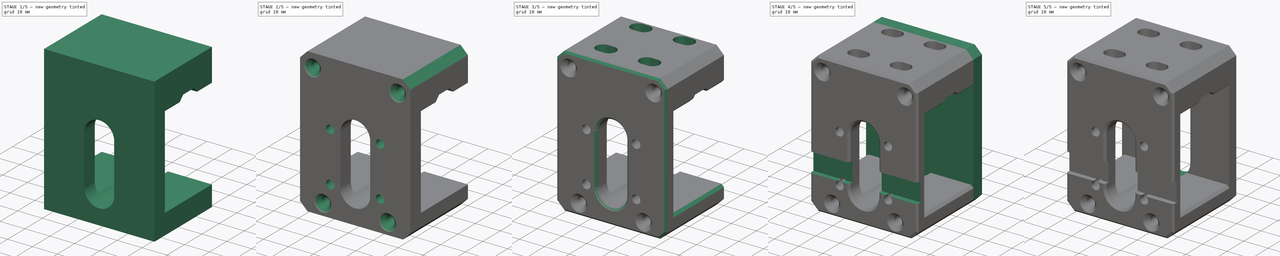
[diagram: build sequence overview — one tinted view per stage of 5, left to right]
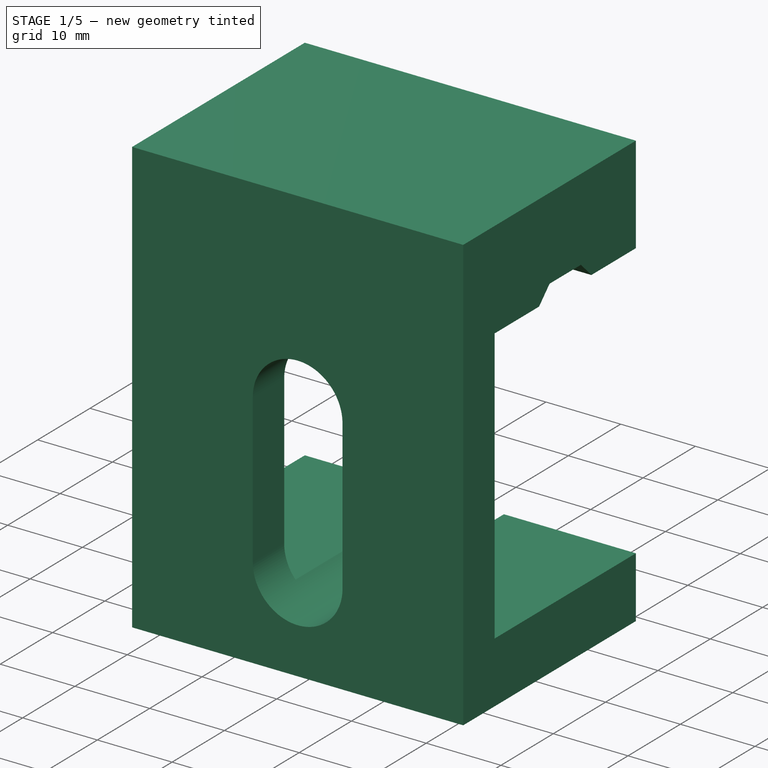
[diagram: stage 1 of 5 — iso view after this stage's code; geometry added in this stage tinted green]
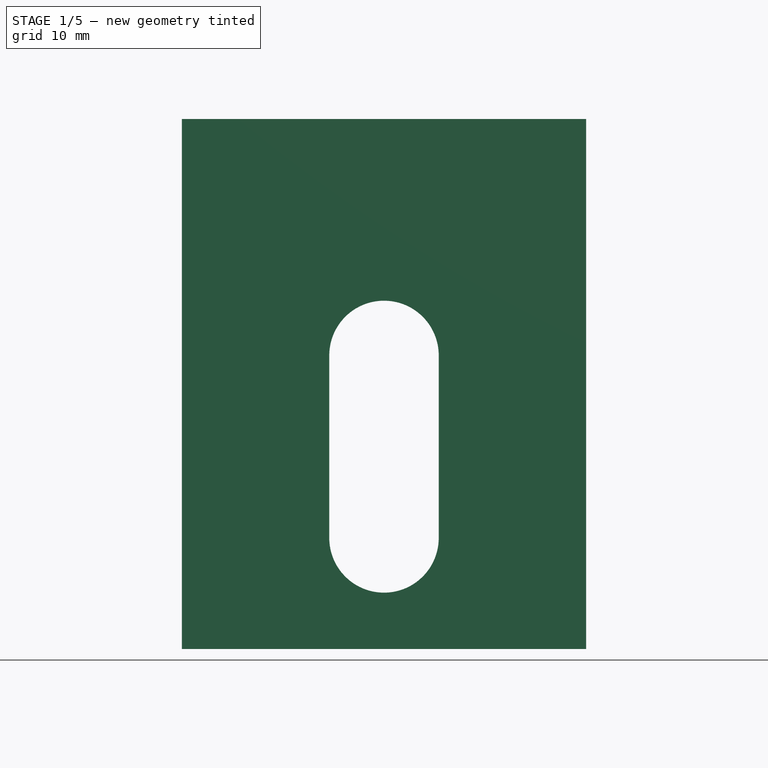
[diagram: stage 1 of 5 — front view after this stage's code; geometry added in this stage tinted green]
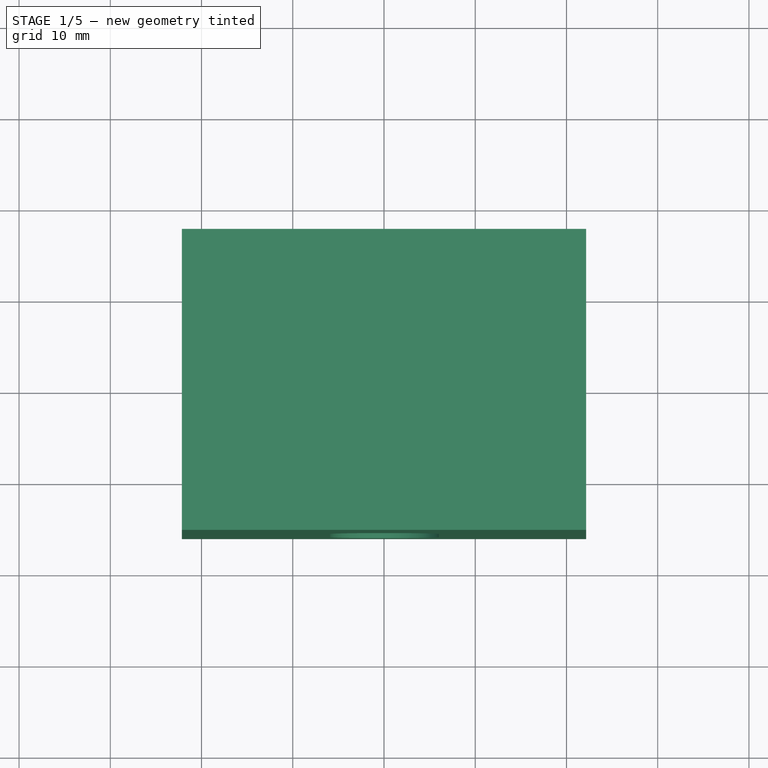
[diagram: stage 1 of 5 — top view after this stage's code; geometry added in this stage tinted green]
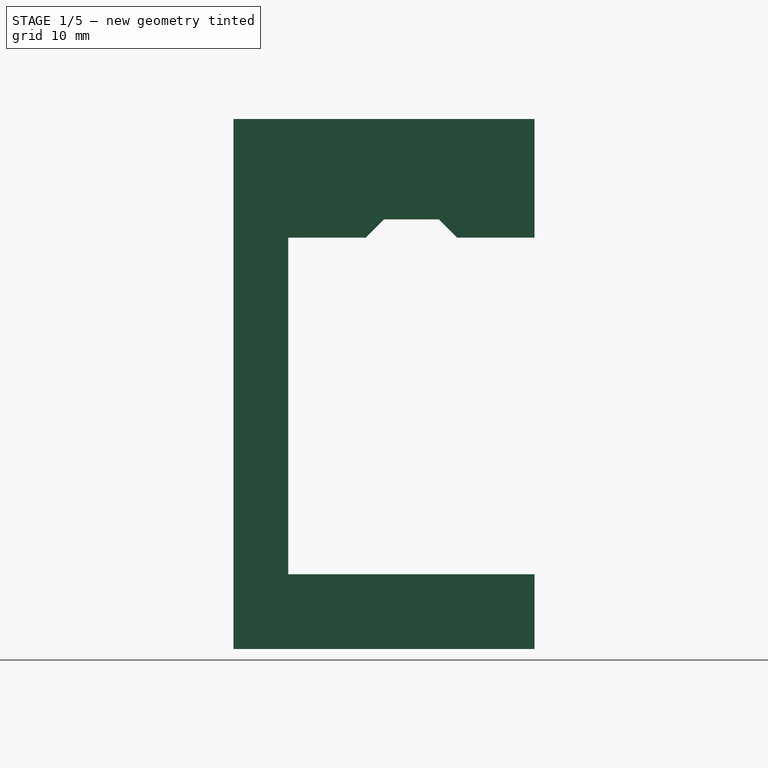
[diagram: stage 1 of 5 — right view after this stage's code; geometry added in this stage tinted green]
FCSTD DOCUMENT  (FreeCAD 2022.709R28846 (Git))
Label: HermitCrab_EVA
License: All rights reserved
objects: PartDesign::Chamfer×8, PartDesign::SubShapeBinder×6, Sketcher::SketchObject×5, PartDesign::Pad×4, PartDesign::Pocket×4, Sketcher::SketchExport×4, PartDesign::Hole×3, PartDesign::Body×3, PartDesign::Plane×2, PartDesign::FeatureBase×1, PartDesign::SubtractiveBox×1
note: 82 computed .brp shape members not serialized (recipe doc carries the construction recipe); baked Part::Feature solids carry a one-line shape summary decoded from their .brp

FEATURE [PartDesign::Body] Body001  label="BackPlate"
  AutoGroupSolids = false
  ClaimAllChildren = false
  ExportMode = 0
  Group = -> [DatumPlane001,Sketch005,Pad003,Chamfer005,Binder005,Pocket003,Binder004,Chamfer006,Hole002,Chamfer007]
  Origin = -> Origin001
  Tip = -> Chamfer007
  TreeRank = 55
  _ExportChildren = -> [DatumPlane001,Pad003,Chamfer005,Pocket003,Chamfer006,Hole002,Chamfer007]
  _GroupVersion = 1
FEATURE [PartDesign::Body] Body
  AutoGroupSolids = false
  ClaimAllChildren = false
  ExportMode = 0
  Group = -> [Sketch,Pad,Export,Export001,Binder001,Sketch002,Pad001,Sketch003,Pad002,Export002,Binder002,Pocket,Hole,Chamfer,Binder,Hole001,Chamfer001,Chamfer002,Chamfer003,Chamfer004,DatumPlane,Sketch004,Export003,Pocket001,Binder003,Pocket002]
  Origin = -> Origin
  Tip = -> Pocket002
  TreeRank = 10
  _ExportChildren = -> [Pad,Pad001,Pad002,Pocket,Hole,Chamfer,Hole001,Chamfer001,Chamfer002,Chamfer003,Chamfer004,DatumPlane,Pocket001,Pocket002]
  _GroupVersion = 1
FEATURE [Sketcher::SketchObject] Sketch  label="S_BasePlate"
  ArcFitTolerance = 1e-06
  AttachmentSupport = -> [XZ_Plane]
  Exports = -> [Export,Export001,Export002]
  FullyConstrained = true
  MapMode = 5
  Placement = pos=(0,0,0) rot=(1,0,0;1.5708rad)
  Support = -> [XZ_Plane]
  TreeRank = 11
  sketch-geometry (27):
    g0: Circle [constr] CenterX=-17.05 CenterY=30.42 CenterZ=0 NormalX=0 NormalY=0 NormalZ=1 AngleXU=0 Radius=1.5
    g1: Circle [constr] CenterX=17.05 CenterY=30.42 CenterZ=0 NormalX=0 NormalY=0 NormalZ=1 AngleXU=0 Radius=1.5
    g2: Circle [constr] CenterX=-13 CenterY=-17.58 CenterZ=0 NormalX=0 NormalY=0 NormalZ=1 AngleXU=0 Radius=1.5
    g3: Circle [constr] CenterX=13 CenterY=-17.58 CenterZ=0 NormalX=0 NormalY=0 NormalZ=1 AngleXU=0 Radius=1.5
    g4: LineSegment [constr] StartX=-17.05 StartY=30.42 StartZ=0 EndX=13 EndY=-17.58 EndZ=0
    g5: LineSegment [constr] StartX=-13 StartY=-17.58 StartZ=0 EndX=17.05 EndY=30.42 EndZ=0
    g6: GeomPoint [constr] X=0 Y=0 Z=0
    g7: LineSegment StartX=-22.15 StartY=35.92 StartZ=0 EndX=22.15 EndY=35.92 EndZ=0
    g8: LineSegment StartX=22.15 StartY=35.92 StartZ=0 EndX=22.15 EndY=-22.18 EndZ=0
    g9: LineSegment StartX=22.15 StartY=-22.18 StartZ=0 EndX=-22.15 EndY=-22.18 EndZ=0
    g10: LineSegment StartX=-22.15 StartY=-22.18 StartZ=0 EndX=-22.15 EndY=35.92 EndZ=0
    g11: LineSegment [constr] StartX=-17.05 StartY=30.42 StartZ=0 EndX=-17.05 EndY=35.92 EndZ=0
    g12: LineSegment [constr] StartX=-17.05 StartY=30.42 StartZ=0 EndX=-22.15 EndY=30.42 EndZ=0
    g13: LineSegment [constr] StartX=-13 StartY=-17.58 StartZ=0 EndX=-13 EndY=-22.18 EndZ=0
    g14: LineSegment [constr] StartX=-10 StartY=10 StartZ=0 EndX=10 EndY=10 EndZ=0
    g15: LineSegment [constr] StartX=10 StartY=10 StartZ=0 EndX=10 EndY=-10 EndZ=0
    g16: LineSegment [constr] StartX=-10 StartY=-10 StartZ=0 EndX=-10 EndY=10 EndZ=0
    g17: GeomPoint [constr] X=10 Y=8e-16 Z=0
    g18: Circle [constr] CenterX=-10 CenterY=10 CenterZ=0 NormalX=0 NormalY=0 NormalZ=1 AngleXU=0 Radius=4
    g19: Circle [constr] CenterX=-10 CenterY=-10 CenterZ=0 NormalX=0 NormalY=0 NormalZ=1 AngleXU=0 Radius=4
    g20: Circle [constr] CenterX=10 CenterY=-10 CenterZ=0 NormalX=0 NormalY=0 NormalZ=1 AngleXU=0 Radius=4
    g21: Circle [constr] CenterX=10 CenterY=10 CenterZ=0 NormalX=0 NormalY=0 NormalZ=1 AngleXU=0 Radius=4
    g22: ArcOfCircle CenterX=0 CenterY=9.99998 CenterZ=0 NormalX=0 NormalY=0 NormalZ=1 AngleXU=0 Radius=6 StartAngle=0 EndAngle=3.14159
    g23: ArcOfCircle CenterX=1e-16 CenterY=-10 CenterZ=0 NormalX=0 NormalY=0 NormalZ=1 AngleXU=0 Radius=6 StartAngle=3.14159 EndAngle=6.28319
    g24: LineSegment StartX=-6 StartY=9.99998 StartZ=0 EndX=-6 EndY=-10 EndZ=0
    g25: LineSegment StartX=6 StartY=9.99998 StartZ=0 EndX=6 EndY=-10 EndZ=0
    g26: LineSegment [constr] StartX=17.05 StartY=30.42 StartZ=0 EndX=22.15 EndY=30.42 EndZ=0
  constraints (70):
    c: Horizontal(g0,g1)
    c: DistanceX(g0,g1) = 34.1
    c: DistanceY(g2,g0) = 48
    c: DistanceX(g2,g3) = 26
    c: Equal(g0,g1)
    c: Equal(g1,g2)
    c: Equal(g2,g3)
    c: Diameter(g0) = 3
    c: Coincident(g4,g0)
    c: Coincident(g4,g3)
    c: Coincident(g5,g2)
    c: Coincident(g5,g1)
    c: Equal(g5,g4)
    c: Coincident(g6,g-1)
    c: Coincident(g7,g8)
    c: Coincident(g8,g9)
    c: Coincident(g9,g10)
    c: Coincident(g10,g7)
    c: Horizontal(g7)
    c: Horizontal(g9)
    c: Vertical(g8)
    c: Vertical(g10)
    c: Coincident(g11,g0)
    c: PointOnObject(g11,g7)
    c: Vertical(g11)
    c: DistanceY(g11,g11) = 5.5
    c: Coincident(g12,g0)
    c: PointOnObject(g12,g10)
    c: Horizontal(g12)
    c: Coincident(g13,g2)
    c: PointOnObject(g13,g9)
    c: Vertical(g13)
    c: DistanceY(g13,g13) = 4.6
    c: DistanceX(g7,g7) = 44.3  'Width'
    c: Coincident(g14,g15)
    c: Coincident(g16,g14)
    c: Horizontal(g14)
    c: Vertical(g15)
    c: DistanceX(g14,g14) = 20
    c: DistanceY(g15,g15) = 20
    c: PointOnObject(g17,g15)
    c: DistanceY(g17,g14) = 10
    c: DistanceY(g8,g17) = 22.18  'DistBottom'
    c: Coincident(g18,g14)
    c: Coincident(g20,g15)
    c: Coincident(g21,g14)
    c: Diameter(g18) = 8
    c: Equal(g18,g21)
    c: Equal(g18,g20)
    c: Equal(g18,g19)
    c: Symmetric(g16,g15,g-2)
    c: Coincident(g19,g16)
    c: Tangent(g22,g25) = 1.5708
    c: Tangent(g22,g24) = -1.5708
    c: Tangent(g24,g23) = -1.5708
    c: Tangent(g25,g23) = 1.5708
    c: Vertical(g24)
    c: Equal(g22,g23)
    c: PointOnObject(g22,g-2)
    c: Tangent(g25,g20)
    c: PointOnObject(g23,g20)
    c: PointOnObject(g22,g21)
    c: Symmetric(g2,g3,g-2)
    c: Coincident(g26,g1)
    c: PointOnObject(g26,g8)
    c: Horizontal(g26)
    c: Equal(g26,g12)
    c: DistanceX(g26,g26) = 5.1
    c: Symmetric(g16,g14,g-1)
    c: DistanceY(g17,g7) = 35.92  'DistTop'
FEATURE [PartDesign::Pad] Pad  label="FrontPlate"
  ClaimChildren = false
  Direction = (1,1,1)
  Fit = 0
  FitJoin = 0
  InnerFit = 0
  InnerFitJoin = 0
  InnerTaperAngle = 0
  InnerTaperAngleRev = 0
  Length = 6
  Length2 = 100
  Linearize = true
  NewSolid = false
  Placement = pos=(0,0,0) rot=(1,0,0;1.5708rad)
  Profile = -> Sketch
  Suppress = false
  TreeRank = 12
  Type = 0
  _ProfileBasedVersion = 1
FEATURE [Sketcher::SketchExport] Export  label="EvaHoles"
  Base = -> Sketch
  BaseRefs = -> Sketch [edge3,edge4,edge2,edge1]
  Placement = pos=(0,0,0) rot=(1,0,0;1.5708rad)
  Refs = ;g3.edge3 | ;g4.edge4 | ;g2.edge2 | ;g1.edge1
  SyncPlacement = true
  TreeRank = 15
FEATURE [Sketcher::SketchExport] Export001  label="HCHoles"
  Base = -> Sketch
  BaseRefs = -> Sketch [edge20,edge21,edge22,edge19]
  Placement = pos=(0,0,0) rot=(1,0,0;1.5708rad)
  Refs = ;g21.edge20 | ;g22.edge21 | ;g23.edge22 | ;g20.edge19
  SyncPlacement = true
  TreeRank = 20
FEATURE [PartDesign::Pad] Pad001  label="TopPlate"
  BaseFeature = -> Pad
  ClaimChildren = false
  Direction = (1,1,1)
  Fit = 0
  FitJoin = 0
  InnerFit = 0
  InnerFitJoin = 0
  InnerTaperAngle = 0
  InnerTaperAngleRev = 0
  Length = 44.3
  Length2 = 100
  Linearize = true
  Midplane = true
  NewSolid = false
  Placement = pos=(0,0,0) rot=(1,0,0;1.5708rad)
  Profile = -> Sketch002
  Suppress = false
  TreeRank = 25
  Type = 0
  _ProfileBasedVersion = 1
  expr: Length = <<S_BasePlate>>.Constraints.Width
FEATURE [PartDesign::Pad] Pad002  label="BottomPlate"
  BaseFeature = -> Pad001
  ClaimChildren = false
  Direction = (1,1,1)
  Fit = 0
  FitJoin = 0
  InnerFit = 0
  InnerFitJoin = 0
  InnerTaperAngle = 0
  InnerTaperAngleRev = 0
  Length = 44.3
  Length2 = 100
  Linearize = true
  Midplane = true
  NewSolid = false
  Placement = pos=(0,0,0) rot=(1,0,0;1.5708rad)
  Profile = -> Sketch003
  Suppress = false
  TreeRank = 27
  Type = 0
  _ProfileBasedVersion = 1
  expr: Length = <<S_BasePlate>>.Constraints.Width
FEATURE [Sketcher::SketchExport] Export002  label="CenterRelief001"
  Base = -> Sketch
  BaseRefs = -> Sketch [edge24,edge25,edge26,edge23]
  Placement = pos=(0,0,0) rot=(1,0,0;1.5708rad)
  Refs = ;g25.edge24 | ;g26.edge25 | ;g27.edge26 | ;g24.edge23
  SyncPlacement = true
  TreeRank = 28
FEATURE [PartDesign::Pocket] Pocket  label="CenterRelief"
  BaseFeature = -> Pad002
  ClaimChildren = false
  Fit = 0
  FitJoin = 0
  InnerFit = 0
  InnerFitJoin = 0
  InnerTaperAngle = 0
  InnerTaperAngleRev = 0
  Length = 5
  Length2 = 100
  Linearize = true
  Midplane = true
  NewSolid = false
  Placement = pos=(0,0,0) rot=(1,0,0;1.5708rad)
  Profile = -> Binder002
  Reversed = true
  Suppress = false
  TreeRank = 30
  Type = 1
  _ProfileBasedVersion = 1
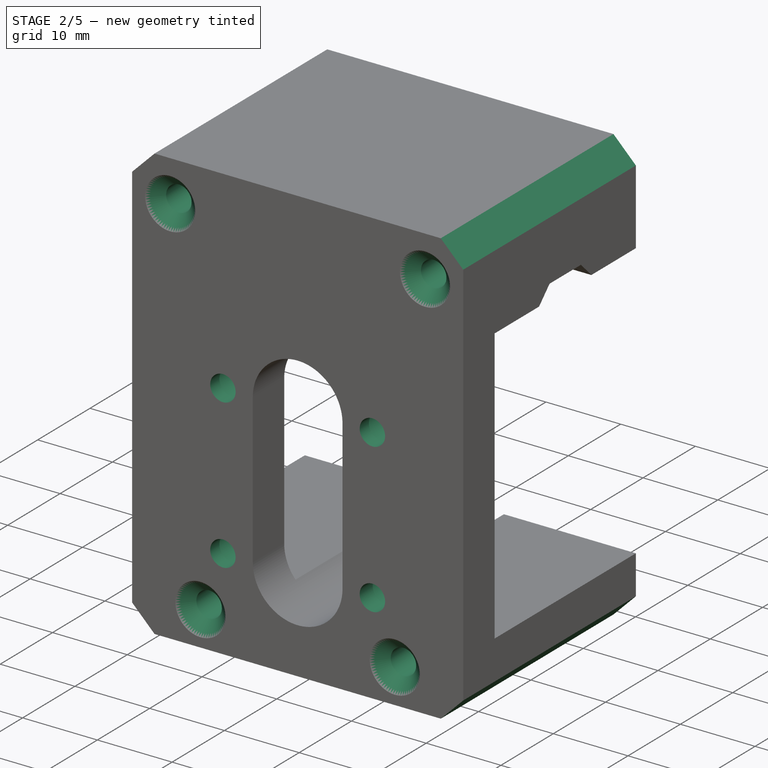
[diagram: stage 2 of 5 — iso view after this stage's code; geometry added in this stage tinted green]
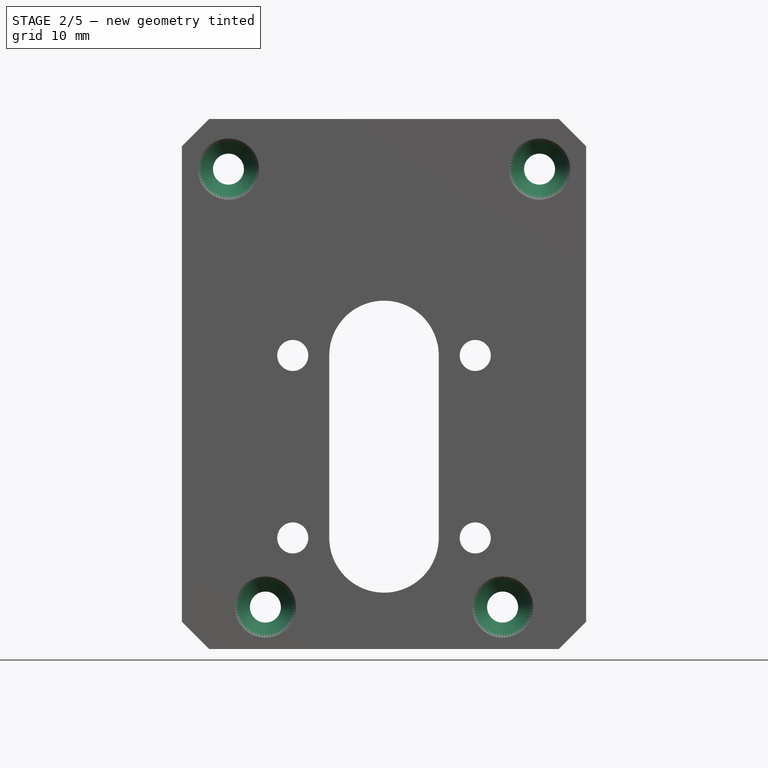
[diagram: stage 2 of 5 — front view after this stage's code; geometry added in this stage tinted green]
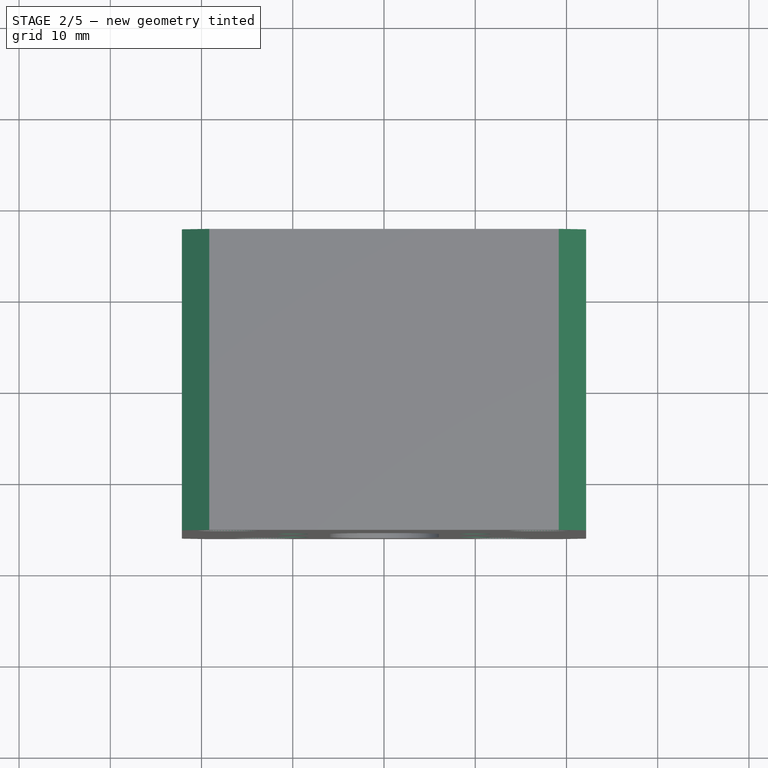
[diagram: stage 2 of 5 — top view after this stage's code; geometry added in this stage tinted green]
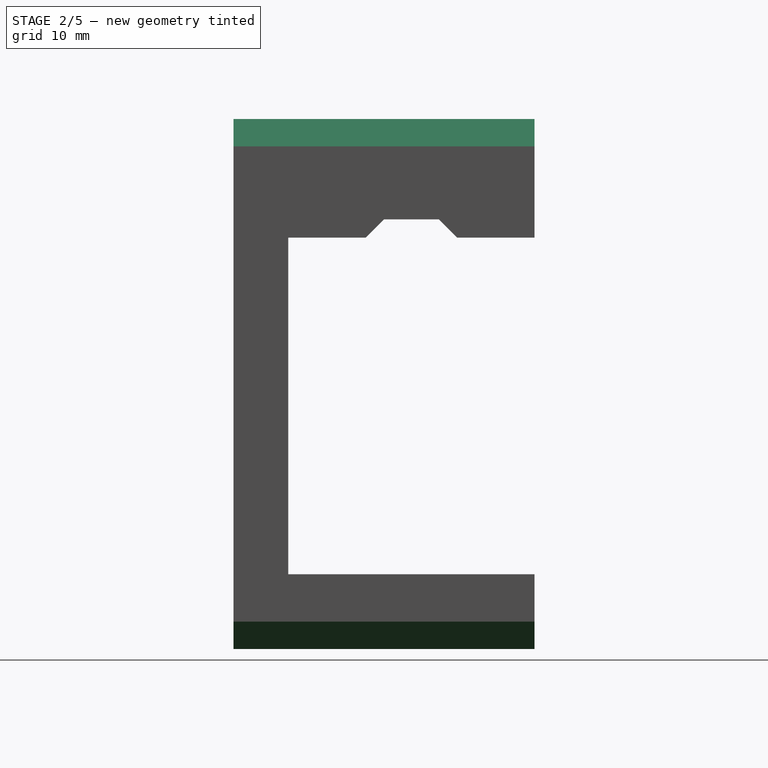
[diagram: stage 2 of 5 — right view after this stage's code; geometry added in this stage tinted green]
FEATURE [PartDesign::Hole] Hole  label="HC_Holes"
  BaseFeature = -> Pocket
  ClaimChildren = false
  CustomThreadClearance = 0
  Depth = 25
  DepthType = 1
  Diameter = 3.4
  DrillForDepth = false
  DrillPoint = 1
  DrillPointAngle = 118
  Fit = 0
  FitJoin = 0
  HoleCutCountersinkAngle = 93
  HoleCutCustomValues = true
  HoleCutDepth = 3.5
  HoleCutDiameter = 4.9
  HoleCutType = 1
  InnerFit = 0
  InnerFitJoin = 0
  ModelThread = false
  NewSolid = false
  Placement = pos=(0,0,0) rot=(1,0,0;1.5708rad)
  Profile = -> Binder001
  Suppress = false
  Tapered = false
  TaperedAngle = 99
  ThreadClass = 0
  ThreadDepth = 161.942
  ThreadDepthType = 0
  ThreadDirection = 0
  ThreadFit = 0
  ThreadSize = 9
  ThreadType = 1
  Threaded = false
  TreeRank = 31
  UseCustomThreadClearance = false
  _ProfileBasedVersion = 1
FEATURE [PartDesign::Chamfer] Chamfer  label="HC_Hole_Chamfer"
  Angle = 45
  Base = -> Hole [Edge62,Edge71,Edge69,Edge60]
  BaseFeature = -> Hole
  ChamferType = 0
  FlipDirection = false
  NewSolid = false
  Placement = pos=(0,0,0) rot=(1,0,0;1.5708rad)
  Size = 0.74
  Size2 = 1
  SupportTransform = false
  Suppress = false
  TreeRank = 32
FEATURE [PartDesign::Hole] Hole001  label="EVAFrontFastener"
  BaseFeature = -> Chamfer
  ClaimChildren = false
  CustomThreadClearance = 0
  Depth = 25
  DepthType = 1
  Diameter = 3.4
  DrillForDepth = false
  DrillPoint = 1
  DrillPointAngle = 118
  Fit = 0
  FitJoin = 0
  HoleCutCountersinkAngle = 90
  HoleCutCustomValues = false
  HoleCutDepth = 0
  HoleCutDiameter = 6.7
  HoleCutType = 7
  InnerFit = 0
  InnerFitJoin = 0
  ModelThread = false
  NewSolid = false
  Placement = pos=(0,0,0) rot=(1,0,0;1.5708rad)
  Profile = -> Binder
  Reversed = true
  Suppress = false
  Tapered = false
  TaperedAngle = 90
  ThreadClass = 0
  ThreadDepth = 161.942
  ThreadDepthType = 0
  ThreadDirection = 0
  ThreadFit = 0
  ThreadSize = 9
  ThreadType = 1
  Threaded = false
  TreeRank = 34
  UseCustomThreadClearance = false
  _ProfileBasedVersion = 1
FEATURE [PartDesign::Chamfer] Chamfer001  label="Chamfer_Corners"
  Angle = 45
  Base = -> Hole001 [Edge22,Edge61,Edge23,Edge62,Edge29,Edge84,Edge63,Edge25]
  BaseFeature = -> Hole001
  ChamferType = 0
  FlipDirection = false
  NewSolid = false
  Placement = pos=(0,0,0) rot=(1,0,0;1.5708rad)
  Size = 3
  Size2 = 1
  SupportTransform = false
  Suppress = false
  TreeRank = 35
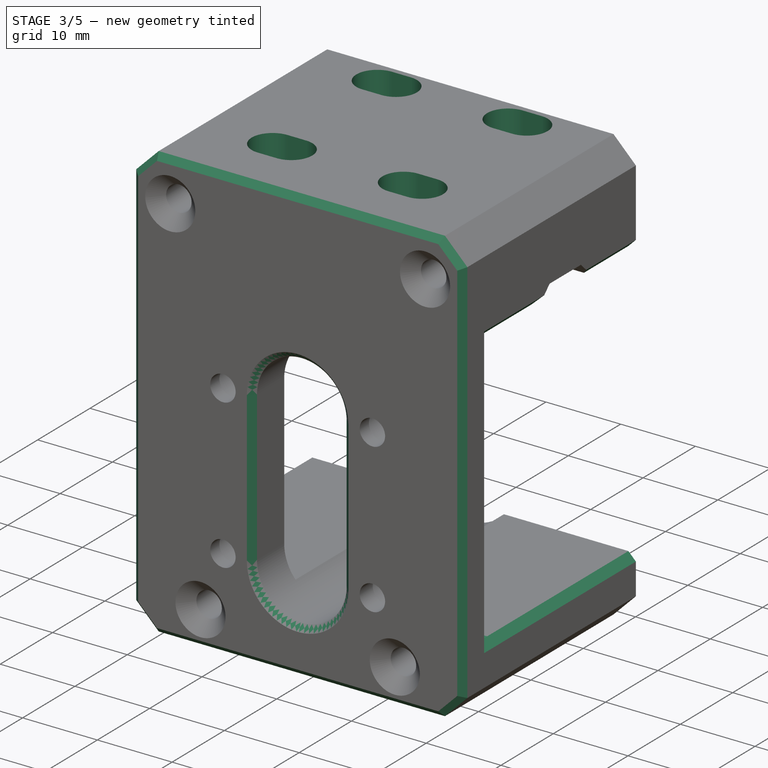
[diagram: stage 3 of 5 — iso view after this stage's code; geometry added in this stage tinted green]
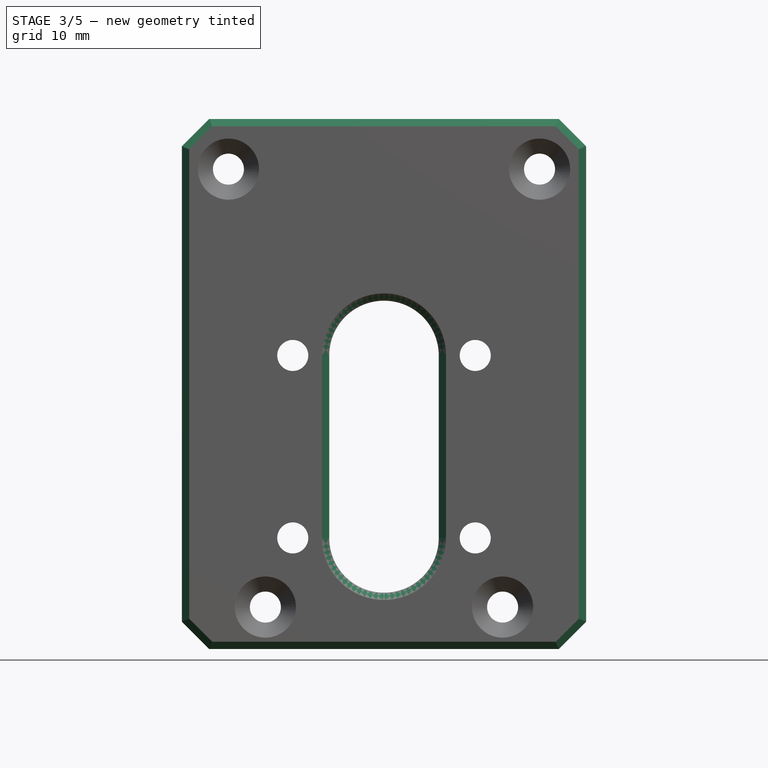
[diagram: stage 3 of 5 — front view after this stage's code; geometry added in this stage tinted green]
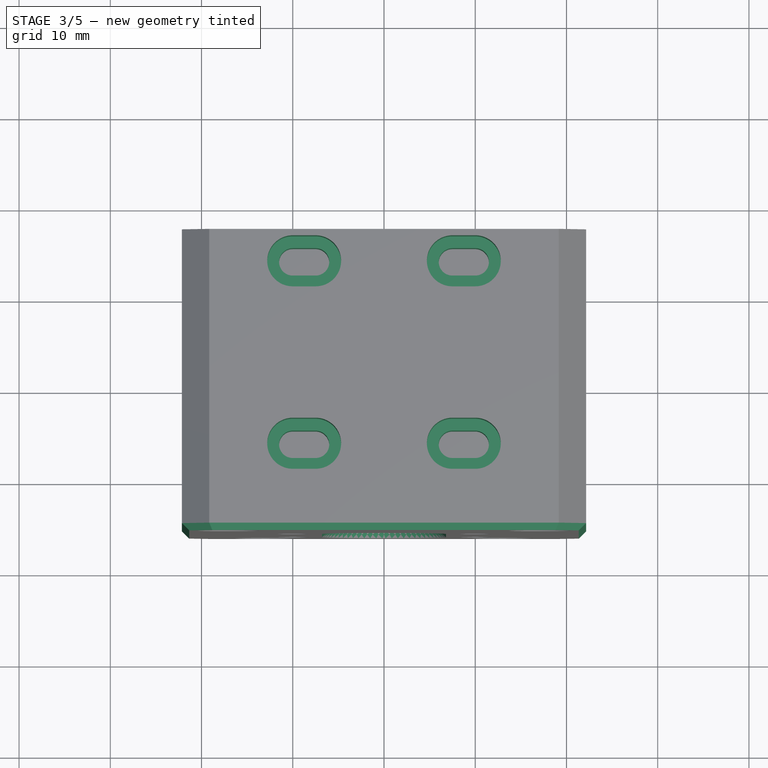
[diagram: stage 3 of 5 — top view after this stage's code; geometry added in this stage tinted green]
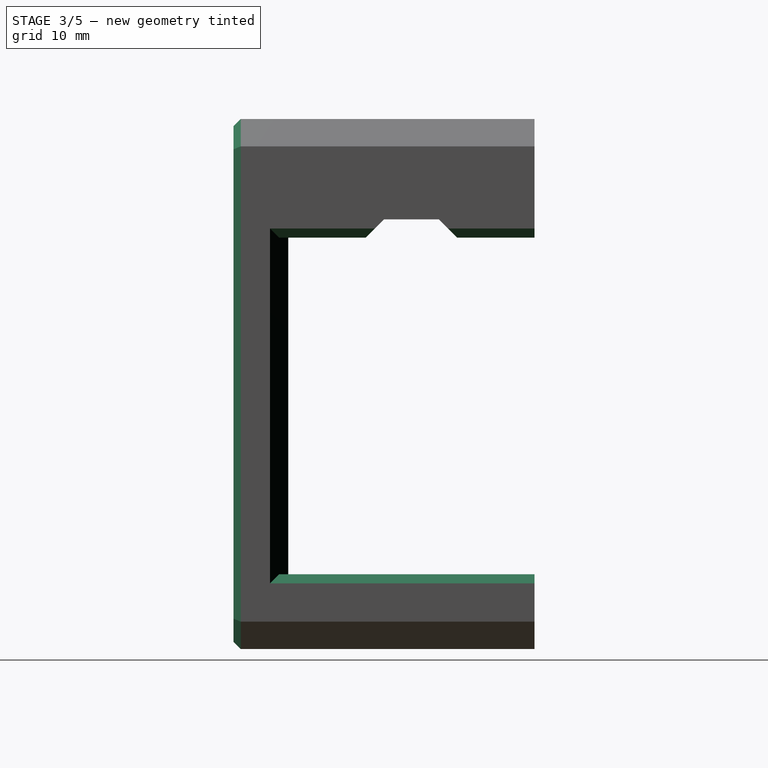
[diagram: stage 3 of 5 — right view after this stage's code; geometry added in this stage tinted green]
FEATURE [PartDesign::Chamfer] Chamfer002  label="Chamfer_FrontInner"
  Angle = 45
  Base = -> Chamfer001 [Edge30,Edge33]
  BaseFeature = -> Chamfer001
  ChamferType = 0
  FlipDirection = false
  NewSolid = false
  Placement = pos=(0,0,0) rot=(1,0,0;1.5708rad)
  Size = 2
  Size2 = 1
  SupportTransform = false
  Suppress = false
  TreeRank = 36
FEATURE [PartDesign::Chamfer] Chamfer003  label="Chamfer_Bottom"
  Angle = 45
  Base = -> Chamfer002 [Edge83,Edge124,Edge8,Edge11,Edge6,Edge50,Edge89,Edge24]
  BaseFeature = -> Chamfer002
  ChamferType = 0
  FlipDirection = false
  NewSolid = false
  Placement = pos=(0,0,0) rot=(1,0,0;1.5708rad)
  Size = 1
  Size2 = 1
  SupportTransform = false
  Suppress = false
  TreeRank = 37
FEATURE [PartDesign::Chamfer] Chamfer004  label="Chamfer_Front"
  Angle = 45
  Base = -> Chamfer003 [Edge5,Edge29,Edge24,Edge25,Edge26,Edge27,Edge28,Edge17,Edge34]
  BaseFeature = -> Chamfer003
  ChamferType = 0
  FlipDirection = false
  NewSolid = false
  Placement = pos=(0,0,0) rot=(1,0,0;1.5708rad)
  Size = 0.8
  Size2 = 1
  SupportTransform = false
  Suppress = false
  TreeRank = 38
FEATURE [Sketcher::SketchObject] Sketch004  label="MGN_Mount"
  ArcFitTolerance = 1e-06
  AttachmentSupport = -> [DatumPlane]
  Exports = -> [Export003]
  FullyConstrained = true
  MapMode = 5
  Placement = pos=(0,0,35.92) rot=(0,0,1;0rad)
  Support = -> [DatumPlane]
  TreeRank = 41
  expr: Constraints[3] = <<S_TopPlate>>.Constraints.Width
  expr: Constraints[88] = <<S_TopPlate>>.Constraints.Width / 2
  sketch-geometry (39):
    g0: LineSegment [constr] StartX=-10 StartY=3.5 StartZ=0 EndX=10 EndY=3.5 EndZ=0
    g1: LineSegment [constr] StartX=-10 StartY=23.5 StartZ=0 EndX=10 EndY=23.5 EndZ=0
    g2: LineSegment [constr] StartX=0 StartY=0 StartZ=0 EndX=0 EndY=27 EndZ=0
    g3: ArcOfCircle CenterX=-10 CenterY=23.5 CenterZ=0 NormalX=0 NormalY=0 NormalZ=1 AngleXU=0 Radius=1.5 StartAngle=1.5708 EndAngle=4.71239
    g4: ArcOfCircle CenterX=-7.5 CenterY=23.5 CenterZ=0 NormalX=0 NormalY=0 NormalZ=1 AngleXU=0 Radius=1.5 StartAngle=4.71239 EndAngle=7.85398
    g5: LineSegment StartX=-10 StartY=22 StartZ=0 EndX=-7.5 EndY=22 EndZ=0
    g6: LineSegment StartX=-10 StartY=25 StartZ=0 EndX=-7.5 EndY=25 EndZ=0
    g7: ArcOfCircle CenterX=10 CenterY=23.5 CenterZ=0 NormalX=0 NormalY=0 NormalZ=1 AngleXU=0 Radius=1.5 StartAngle=4.71239 EndAngle=7.85398
    g8: ArcOfCircle CenterX=7.5 CenterY=23.5 CenterZ=0 NormalX=0 NormalY=0 NormalZ=1 AngleXU=0 Radius=1.5 StartAngle=1.5708 EndAngle=4.71239
    g9: LineSegment StartX=10 StartY=25 StartZ=0 EndX=7.5 EndY=25 EndZ=0
    g10: LineSegment StartX=10 StartY=22 StartZ=0 EndX=7.5 EndY=22 EndZ=0
    g11: ArcOfCircle CenterX=-10 CenterY=3.5 CenterZ=0 NormalX=0 NormalY=0 NormalZ=1 AngleXU=0 Radius=1.5 StartAngle=1.5708 EndAngle=4.71239
    g12: ArcOfCircle CenterX=-7.5 CenterY=3.5 CenterZ=0 NormalX=0 NormalY=0 NormalZ=1 AngleXU=0 Radius=1.5 StartAngle=4.71239 EndAngle=7.85398
    g13: LineSegment StartX=-10 StartY=2 StartZ=0 EndX=-7.5 EndY=2 EndZ=0
    g14: LineSegment StartX=-10 StartY=5 StartZ=0 EndX=-7.5 EndY=5 EndZ=0
    g15: ArcOfCircle CenterX=10 CenterY=3.5 CenterZ=0 NormalX=0 NormalY=0 NormalZ=1 AngleXU=0 Radius=1.5 StartAngle=4.71239 EndAngle=7.85398
    g16: ArcOfCircle CenterX=7.5 CenterY=3.5 CenterZ=0 NormalX=0 NormalY=0 NormalZ=1 AngleXU=0 Radius=1.5 StartAngle=1.5708 EndAngle=4.71239
    g17: LineSegment StartX=10 StartY=5 StartZ=0 EndX=7.5 EndY=5 EndZ=0
    g18: LineSegment StartX=10 StartY=2 StartZ=0 EndX=7.5 EndY=2 EndZ=0
    g19: ArcOfCircle [constr] CenterX=-10 CenterY=23.5 CenterZ=0 NormalX=0 NormalY=0 NormalZ=1 AngleXU=0 Radius=2.8 StartAngle=1.5708 EndAngle=4.71239
    g20: ArcOfCircle [constr] CenterX=-7.5 CenterY=23.5 CenterZ=0 NormalX=0 NormalY=0 NormalZ=1 AngleXU=0 Radius=2.8 StartAngle=4.71239 EndAngle=7.85398
    g21: LineSegment [constr] StartX=-10 StartY=20.7 StartZ=0 EndX=-7.5 EndY=20.7 EndZ=0
    g22: LineSegment [constr] StartX=-10 StartY=26.3 StartZ=0 EndX=-7.5 EndY=26.3 EndZ=0
    g23: ArcOfCircle [constr] CenterX=-10 CenterY=3.5 CenterZ=0 NormalX=0 NormalY=0 NormalZ=1 AngleXU=0 Radius=2.8 StartAngle=1.5708 EndAngle=4.71239
    g24: ArcOfCircle [constr] CenterX=-7.5 CenterY=3.5 CenterZ=0 NormalX=0 NormalY=0 NormalZ=1 AngleXU=0 Radius=2.8 StartAngle=4.71239 EndAngle=7.85398
    g25: LineSegment [constr] StartX=-10 StartY=0.7 StartZ=0 EndX=-7.5 EndY=0.7 EndZ=0
    g26: LineSegment [constr] StartX=-10 StartY=6.3 StartZ=0 EndX=-7.5 EndY=6.3 EndZ=0
    g27: ArcOfCircle [constr] CenterX=10 CenterY=3.5 CenterZ=0 NormalX=0 NormalY=0 NormalZ=1 AngleXU=0 Radius=2.8 StartAngle=4.71239 EndAngle=7.85398
    g28: ArcOfCircle [constr] CenterX=7.5 CenterY=3.5 CenterZ=0 NormalX=0 NormalY=0 NormalZ=1 AngleXU=0 Radius=2.8 StartAngle=1.5708 EndAngle=4.71239
    g29: LineSegment [constr] StartX=10 StartY=6.3 StartZ=0 EndX=7.5 EndY=6.3 EndZ=0
    g30: LineSegment [constr] StartX=10 StartY=0.7 StartZ=0 EndX=7.5 EndY=0.7 EndZ=0
    g31: ArcOfCircle [constr] CenterX=10 CenterY=23.5 CenterZ=0 NormalX=0 NormalY=0 NormalZ=1 AngleXU=0 Radius=2.8 StartAngle=4.71239 EndAngle=7.85398
    g32: ArcOfCircle [constr] CenterX=7.5 CenterY=23.5 CenterZ=0 NormalX=0 NormalY=0 NormalZ=1 AngleXU=0 Radius=2.8 StartAngle=1.5708 EndAngle=4.71239
    g33: LineSegment [constr] StartX=10 StartY=26.3 StartZ=0 EndX=7.5 EndY=26.3 EndZ=0
    g34: LineSegment [constr] StartX=10 StartY=20.7 StartZ=0 EndX=7.5 EndY=20.7 EndZ=0
    g35: ArcOfCircle [constr] CenterX=-7.5 CenterY=13.5 CenterZ=0 NormalX=0 NormalY=0 NormalZ=1 AngleXU=0 Radius=2.8 StartAngle=1.5708 EndAngle=4.71239
    g36: ArcOfCircle [constr] CenterX=7.5 CenterY=13.5 CenterZ=0 NormalX=0 NormalY=0 NormalZ=1 AngleXU=0 Radius=2.8 StartAngle=4.71239 EndAngle=7.85398
    g37: LineSegment [constr] StartX=-7.5 StartY=10.7 StartZ=0 EndX=7.5 EndY=10.7 EndZ=0
    g38: LineSegment [constr] StartX=-7.5 StartY=16.3 StartZ=0 EndX=7.5 EndY=16.3 EndZ=0
  constraints (92):
    c: Horizontal(g0)
    c: Coincident(g2,g-1)
    c: PointOnObject(g2,g-2)
    c: DistanceY(g2,g2) = 27
    c: DistanceY(g1,g2) = 3.5
    c: DistanceY(g2,g0) = 3.5
    c: DistanceX(g1,g1) = 20
    c: Symmetric(g1,g1,g2)
    c: Vertical(g0,g1)
    c: Vertical(g0,g1)
    c: Tangent(g3,g6) = 1.5708
    c: Tangent(g3,g5) = -1.5708
    c: Tangent(g5,g4) = -1.5708
    c: Tangent(g6,g4) = 1.5708
    c: Horizontal(g5)
    c: Equal(g3,g4)
    c: Coincident(g3,g1)
    c: Tangent(g7,g10) = 1.5708
    c: Tangent(g7,g9) = -1.5708
    c: Tangent(g9,g8) = -1.5708
    c: Tangent(g10,g8) = 1.5708
    c: Horizontal(g9)
    c: Equal(g7,g8)
    c: Coincident(g7,g1)
    c: Tangent(g11,g14) = 1.5708
    c: Tangent(g11,g13) = -1.5708
    c: Tangent(g13,g12) = -1.5708
    c: Tangent(g14,g12) = 1.5708
    c: Horizontal(g13)
    c: Equal(g11,g12)
    c: Coincident(g11,g0)
    c: Tangent(g15,g18) = 1.5708
    c: Tangent(g15,g17) = -1.5708
    c: Tangent(g17,g16) = -1.5708
    c: Tangent(g18,g16) = 1.5708
    c: Horizontal(g17)
    c: Equal(g15,g16)
    c: Coincident(g15,g0)
    c: DistanceX(g3,g4) = 2.5
    c: Equal(g5,g10)
    c: Equal(g10,g17)
    c: Equal(g17,g14)
    c: Diameter(g4) = 3
    c: Equal(g4,g12)
    c: Equal(g4,g16)
    c: Equal(g4,g8)
    c: Tangent(g19,g22) = 1.5708
    c: Tangent(g19,g21) = -1.5708
    c: Tangent(g21,g20) = -1.5708
    c: Tangent(g22,g20) = 1.5708
    c: Horizontal(g21)
    c: Equal(g19,g20)
    c: Equal(g21,g5)
    c: Coincident(g19,g3)
    c: Diameter(g19) = 5.6
    c: Tangent(g23,g26) = 1.5708
    c: Tangent(g23,g25) = -1.5708
    c: Tangent(g25,g24) = -1.5708
    c: Tangent(g26,g24) = 1.5708
    c: Horizontal(g25)
    c: Equal(g23,g24)
    c: Coincident(g23,g11)
    c: Tangent(g27,g30) = 1.5708
    c: Tangent(g27,g29) = -1.5708
    c: Tangent(g29,g28) = -1.5708
    c: Tangent(g30,g28) = 1.5708
    c: Horizontal(g29)
    c: Equal(g27,g28)
    c: Coincident(g27,g15)
    c: Tangent(g31,g34) = 1.5708
    c: Tangent(g31,g33) = -1.5708
    c: Tangent(g33,g32) = -1.5708
    c: Tangent(g34,g32) = 1.5708
    c: Horizontal(g33)
    c: Equal(g31,g32)
    c: Coincident(g31,g7)
    c: Equal(g10,g34)
    c: Equal(g29,g17)
    c: Equal(g14,g26)
    c: Equal(g23,g19)
    c: Equal(g19,g31)
    c: Equal(g31,g27)
    c: Tangent(g35,g38) = 1.5708
    c: Tangent(g35,g37) = -1.5708
    c: Tangent(g37,g36) = -1.5708
    c: Tangent(g38,g36) = 1.5708
    c: Horizontal(g37)
    c: Equal(g35,g36)
    c: DistanceY(g2,g35) = 13.5
    c: Vertical(g35,g4)
    c: Vertical(g36,g8)
    c: Equal(g35,g19)
FEATURE [Sketcher::SketchExport] Export003  label="Outer"
  Base = -> Sketch004
  BaseRefs = -> Sketch004 [edge20,edge23,edge21,edge22,edge33,edge34,edge32,edge35,edge30,edge28,edge31,edge29,edge25,edge26,edge24,edge27]
  Placement = pos=(0,0,35.92) rot=(0,0,1;0rad)
  Refs = ;g57.edge20 | ;g60.edge23 | ;g58.edge21 | ;g59.edge22 | ;g74.edge33 | ;g75.edge34 | ;g73.edge32 | ;g76.edge35 | ;g67.edge30 | ;g65.edge28 | ;g68.edge31 | ;g66.edge29 | ;g62.edge25 | ;g63.edge26 | ;g61.edge24 | ;g64.edge27
  SyncPlacement = true
  TreeRank = 42
FEATURE [PartDesign::Pocket] Pocket001
  BaseFeature = -> Chamfer004
  ClaimChildren = false
  Fit = 0
  FitJoin = 0
  InnerFit = 0
  InnerFitJoin = 0
  InnerTaperAngle = 0
  InnerTaperAngleRev = 0
  Length = 25
  Length2 = 100
  Linearize = true
  NewSolid = false
  Placement = pos=(0,0,0) rot=(1,0,0;1.5708rad)
  Profile = -> Sketch004
  Suppress = false
  TreeRank = 43
  Type = 0
  _ProfileBasedVersion = 1
FEATURE [PartDesign::Pocket] Pocket002
  BaseFeature = -> Pocket001
  ClaimChildren = false
  Fit = 0
  FitJoin = 0
  InnerFit = 0
  InnerFitJoin = 0
  InnerTaperAngle = 0
  InnerTaperAngleRev = 0
  Length = 6.8
  Length2 = 100
  Linearize = true
  NewSolid = false
  Placement = pos=(0,0,0) rot=(1,0,0;1.5708rad)
  Profile = -> Binder003
  Suppress = false
  TreeRank = 45
  Type = 0
  _ProfileBasedVersion = 1
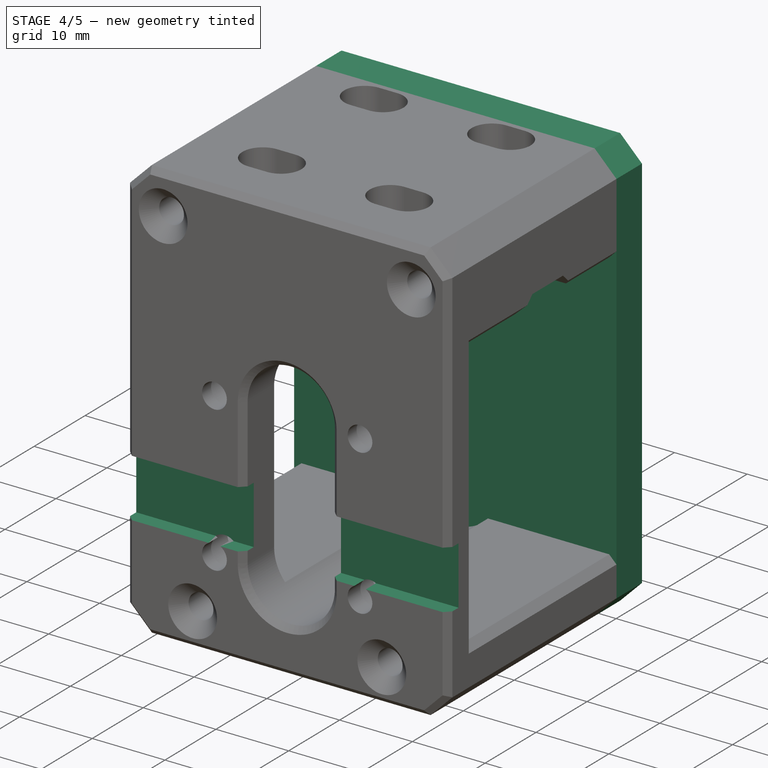
[diagram: stage 4 of 5 — iso view after this stage's code; geometry added in this stage tinted green]
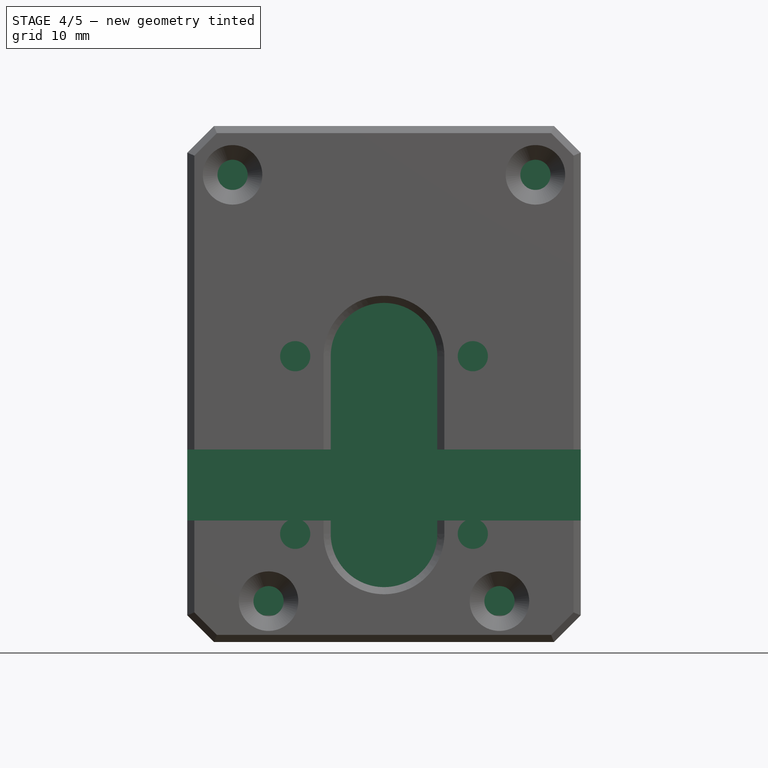
[diagram: stage 4 of 5 — front view after this stage's code; geometry added in this stage tinted green]
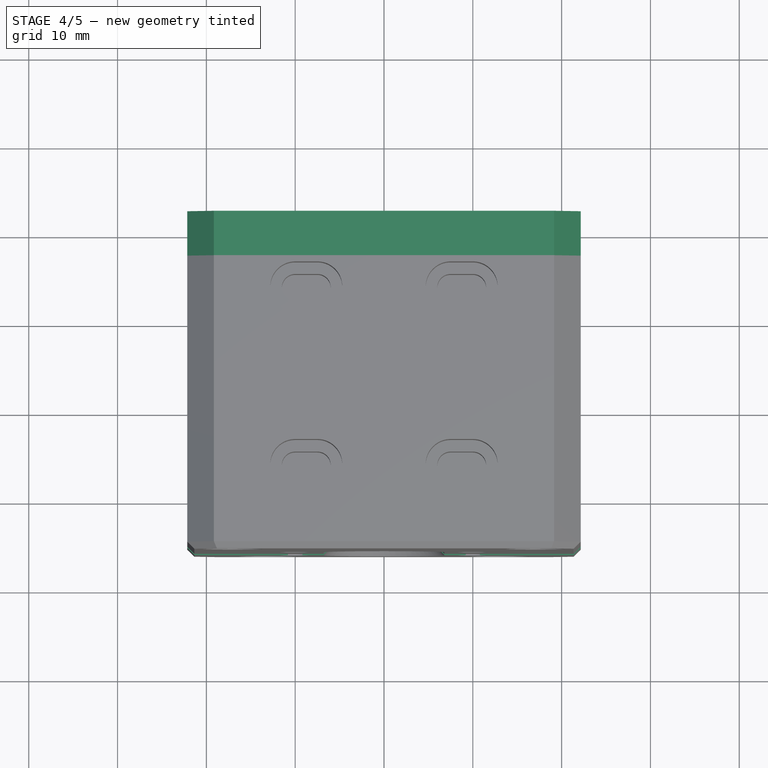
[diagram: stage 4 of 5 — top view after this stage's code; geometry added in this stage tinted green]
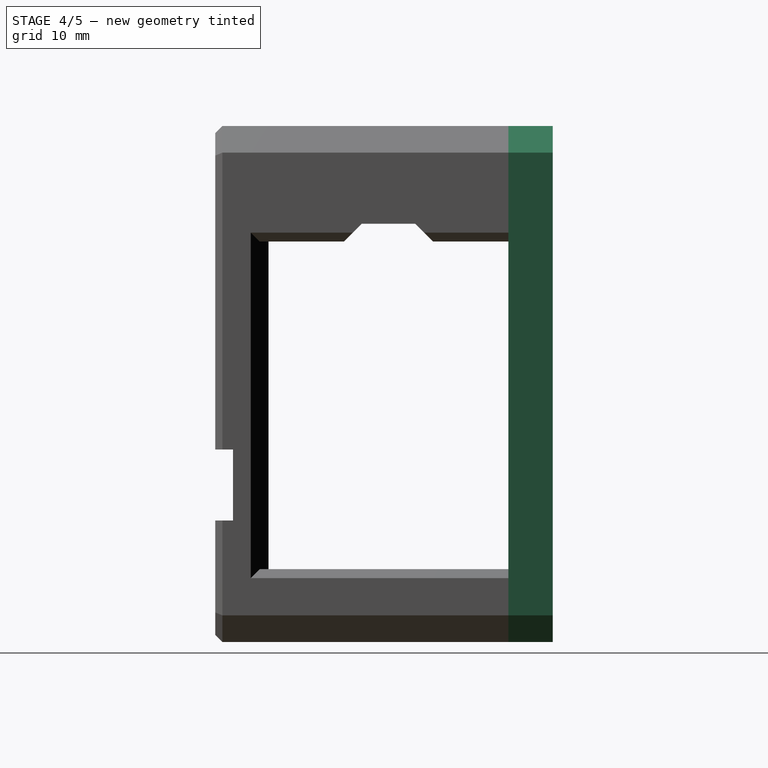
[diagram: stage 4 of 5 — right view after this stage's code; geometry added in this stage tinted green]
FEATURE [PartDesign::SubShapeBinder] Binder001  label="Binder001(HCHoles)"
  BindCopyOnChange = 0
  BindMode = 0
  ClaimChildren = false
  Context = -> Body [Binder001.]
  FillStyle = 0
  Fuse = false
  MakeFace = true
  OffsetFill = false
  OffsetIntersection = false
  OffsetJoinType = 0
  OffsetOpenResult = false
  PartialLoad = false
  Relative = true
  Support = -> [Export001]
  TreeRank = 21
  _Version = 8
FEATURE [Sketcher::SketchObject] Sketch002  label="S_TopPlate"
  ArcFitTolerance = 1e-06
  AttachmentSupport = -> [YZ_Plane]
  FullyConstrained = true
  MapMode = 5
  Placement = pos=(0,0,0) rot=(0.57735,0.57735,0.57735;2.0944rad)
  Support = -> [YZ_Plane]
  TreeRank = 24
  expr: Constraints[14] = <<S_BasePlate>>.Constraints.DistTop
  sketch-geometry (8):
    g0: LineSegment StartX=0 StartY=35.92 StartZ=0 EndX=27 EndY=35.92 EndZ=0
    g1: LineSegment StartX=0 StartY=35.92 StartZ=0 EndX=0 EndY=22.92 EndZ=0
    g2: LineSegment StartX=0 StartY=22.92 StartZ=0 EndX=8.5 EndY=22.92 EndZ=0
    g3: LineSegment StartX=8.5 StartY=22.92 StartZ=0 EndX=10.5 EndY=24.92 EndZ=0
    g4: LineSegment StartX=10.5 StartY=24.92 StartZ=0 EndX=16.5 EndY=24.92 EndZ=0
    g5: LineSegment StartX=16.5 StartY=24.92 StartZ=0 EndX=18.5 EndY=22.92 EndZ=0
    g6: LineSegment StartX=18.5 StartY=22.92 StartZ=0 EndX=27 EndY=22.92 EndZ=0
    g7: LineSegment StartX=27 StartY=22.92 StartZ=0 EndX=27 EndY=35.92 EndZ=0
  constraints (24):
    c: PointOnObject(g0,g-2)
    c: Horizontal(g0)
    c: Coincident(g1,g0)
    c: PointOnObject(g1,g-2)
    c: Coincident(g2,g1)
    c: Horizontal(g2)
    c: Coincident(g3,g2)
    c: Coincident(g4,g3)
    c: Horizontal(g4)
    c: Coincident(g5,g4)
    c: Coincident(g6,g5)
    c: Horizontal(g6)
    c: Coincident(g7,g0)
    c: Vertical(g7)
    c: DistanceY(g-1,g0) = 35.92
    c: DistanceX(g0,g0) = 27  'Width'
    c: Coincident(g6,g7)
    c: Equal(g2,g6)
    c: Equal(g3,g5)
    c: Equal(g1,g7)
    c: DistanceY(g1,g1) = 13
    c: Angle(g3) = 0.785398
    c: DistanceX(g2,g2) = 8.5
    c: DistanceX(g2,g3) = 2
FEATURE [Sketcher::SketchObject] Sketch003  label="S_BottomPlate"
  ArcFitTolerance = 1e-06
  AttachmentSupport = -> [YZ_Plane]
  FullyConstrained = true
  MapMode = 5
  Placement = pos=(0,0,0) rot=(0.57735,0.57735,0.57735;2.0944rad)
  Support = -> [YZ_Plane]
  TreeRank = 26
  expr: Constraints[9] = <<S_BasePlate>>.Constraints.DistBottom
  sketch-geometry (4):
    g0: LineSegment StartX=0 StartY=-22.18 StartZ=0 EndX=27 EndY=-22.18 EndZ=0
    g1: LineSegment StartX=27 StartY=-22.18 StartZ=0 EndX=27 EndY=-13.98 EndZ=0
    g2: LineSegment StartX=27 StartY=-13.98 StartZ=0 EndX=0 EndY=-13.98 EndZ=0
    g3: LineSegment StartX=0 StartY=-13.98 StartZ=0 EndX=0 EndY=-22.18 EndZ=0
  constraints (12):
    c: Coincident(g0,g1)
    c: Coincident(g1,g2)
    c: Coincident(g2,g3)
    c: Coincident(g3,g0)
    c: Horizontal(g0)
    c: Horizontal(g2)
    c: Vertical(g1)
    c: Vertical(g3)
    c: PointOnObject(g0,g-2)
    c: DistanceY(g0,g-1) = 22.18
    c: DistanceY(g3,g3) = 8.2
    c: DistanceX(g0,g0) = 27
FEATURE [PartDesign::SubShapeBinder] Binder002  label="Binder002(CenterRelief001)"
  BindCopyOnChange = 0
  BindMode = 0
  ClaimChildren = false
  Context = -> Body [Binder002.]
  FillStyle = 0
  Fuse = false
  MakeFace = true
  OffsetFill = false
  OffsetIntersection = false
  OffsetJoinType = 0
  OffsetOpenResult = false
  PartialLoad = false
  Relative = true
  Support = -> [Export002]
  TreeRank = 29
  _Version = 8
FEATURE [PartDesign::SubShapeBinder] Binder  label="Binder(EvaHoles)"
  BindCopyOnChange = 0
  BindMode = 0
  ClaimChildren = false
  Context = -> Body [Binder.]
  FillStyle = 0
  Fuse = false
  MakeFace = true
  OffsetFill = false
  OffsetIntersection = false
  OffsetJoinType = 0
  OffsetOpenResult = false
  PartialLoad = false
  Placement = pos=(0,-6,0) rot=(0,0,1;0rad)
  Relative = true
  Support = -> [Export]
  TreeRank = 33
  _Version = 8
  expr: Placement.Base.y = -<<FrontPlate>>.Length
FEATURE [PartDesign::Plane] DatumPlane
  AttachmentOffset = pos=(0,0,35.92) rot=(0,0,1;0rad)
  AttachmentSupport = -> [XY_Plane]
  Length = 44.3
  MapMode = 5
  MinimumLength = 10
  MinimumWidth = 10
  Placement = pos=(0,0,35.92) rot=(0,0,1;0rad)
  ResizeMode = 0
  Support = -> [XY_Plane]
  TreeRank = 40
  Width = 162.963
  expr: AttachmentOffset.Base.z = <<S_BasePlate>>.Constraints.DistTop
FEATURE [PartDesign::SubShapeBinder] Binder003  label="Binder003(Outer)"
  BindCopyOnChange = 0
  BindMode = 0
  ClaimChildren = false
  Context = -> Body [Binder003.]
  FillStyle = 0
  Fuse = false
  MakeFace = true
  OffsetFill = false
  OffsetIntersection = false
  OffsetJoinType = 0
  OffsetOpenResult = false
  PartialLoad = false
  Relative = true
  Support = -> [Export003]
  TreeRank = 44
  _Version = 8
FEATURE [PartDesign::Plane] DatumPlane001
  AttachmentOffset = pos=(0,0,27) rot=(0,0,1;0rad)
  AttachmentSupport = -> [XZ_Plane001]
  Length = 44.3
  MapMode = 5
  MinimumLength = 10
  MinimumWidth = 10
  Placement = pos=(0,27,-6e-15) rot=(0,0.707107,0.707107;3.14159rad)
  ResizeMode = 0
  Support = -> [XZ_Plane001]
  TreeRank = 56
  Width = 33
  expr: AttachmentOffset.Base.z = <<S_TopPlate>>.Constraints.Width
FEATURE [Sketcher::SketchObject] Sketch005
  ArcFitTolerance = 1e-06
  AttachmentSupport = -> [DatumPlane001]
  FullyConstrained = true
  MapMode = 5
  Placement = pos=(0,27,-6e-15) rot=(0,0.707107,0.707107;3.14159rad)
  Support = -> [DatumPlane001]
  TreeRank = 57
  expr: Constraints[7] = <<S_BasePlate>>.Constraints.Width
  expr: Constraints[8] = <<S_BasePlate>>.Constraints.DistTop
  expr: Constraints[9] = <<S_BasePlate>>.Constraints.DistBottom
  sketch-geometry (4):
    g0: LineSegment StartX=-22.15 StartY=35.92 StartZ=0 EndX=22.15 EndY=35.92 EndZ=0
    g1: LineSegment StartX=22.15 StartY=35.92 StartZ=0 EndX=22.15 EndY=-22.18 EndZ=0
    g2: LineSegment StartX=22.15 StartY=-22.18 StartZ=0 EndX=-22.15 EndY=-22.18 EndZ=0
    g3: LineSegment StartX=-22.15 StartY=-22.18 StartZ=0 EndX=-22.15 EndY=35.92 EndZ=0
  constraints (11):
    c: Coincident(g0,g1)
    c: Coincident(g1,g2)
    c: Coincident(g2,g3)
    c: Coincident(g3,g0)
    c: Horizontal(g2)
    c: Vertical(g1)
    c: Vertical(g3)
    c: DistanceX(g0,g0) = 44.3
    c: DistanceY(g-1,g0) = 35.92
    c: DistanceY(g2,g-1) = 22.18
    c: Symmetric(g0,g0,g-2)
FEATURE [PartDesign::Pad] Pad003
  ClaimChildren = false
  Direction = (1,1,1)
  Fit = 0
  FitJoin = 0
  InnerFit = 0
  InnerFitJoin = 0
  InnerTaperAngle = 0
  InnerTaperAngleRev = 0
  Length = 5
  Length2 = 100
  Linearize = true
  NewSolid = false
  Placement = pos=(0,27,-6e-15) rot=(0,0.707107,0.707107;3.14159rad)
  Profile = -> Sketch005
  Suppress = false
  TreeRank = 58
  Type = 0
  _ProfileBasedVersion = 1
FEATURE [PartDesign::Chamfer] Chamfer005
  Angle = 45
  Base = -> Pad003 [Edge8,Edge1,Edge2,Edge5]
  BaseFeature = -> Pad003
  ChamferType = 0
  FlipDirection = false
  NewSolid = false
  Placement = pos=(0,27,-6e-15) rot=(0,0.707107,0.707107;3.14159rad)
  Size = 3
  Size2 = 1
  SupportTransform = false
  Suppress = false
  TreeRank = 59
FEATURE [PartDesign::Body] Body002  label="A_Side"
  AutoGroupSolids = false
  ClaimAllChildren = false
  ExportMode = 0
  Group = -> [Clone,Box]
  Origin = -> Origin002
  Tip = -> Box
  TreeRank = 77
  _ExportChildren = -> [Clone,Box]
  _GroupVersion = 1
FEATURE [PartDesign::FeatureBase] Clone
  BaseFeature = -> Body
  NewSolid = false
  Suppress = false
  TreeRank = 76
FEATURE [PartDesign::SubtractiveBox] Box
  AttacherType = Attacher::AttachEngine3D
  AttachmentOffset = pos=(-25,-8.5,4) rot=(0,0,1;0rad)
  AttachmentSupport = -> [XZ_Plane002]
  BaseFeature = -> Clone
  Height = 2
  Length = 50
  MapMode = 5
  NewSolid = false
  Placement = pos=(-25,-4,-8.5) rot=(1,0,0;1.5708rad)
  Support = -> [XZ_Plane002]
  Suppress = false
  TreeRank = 78
  Width = 8
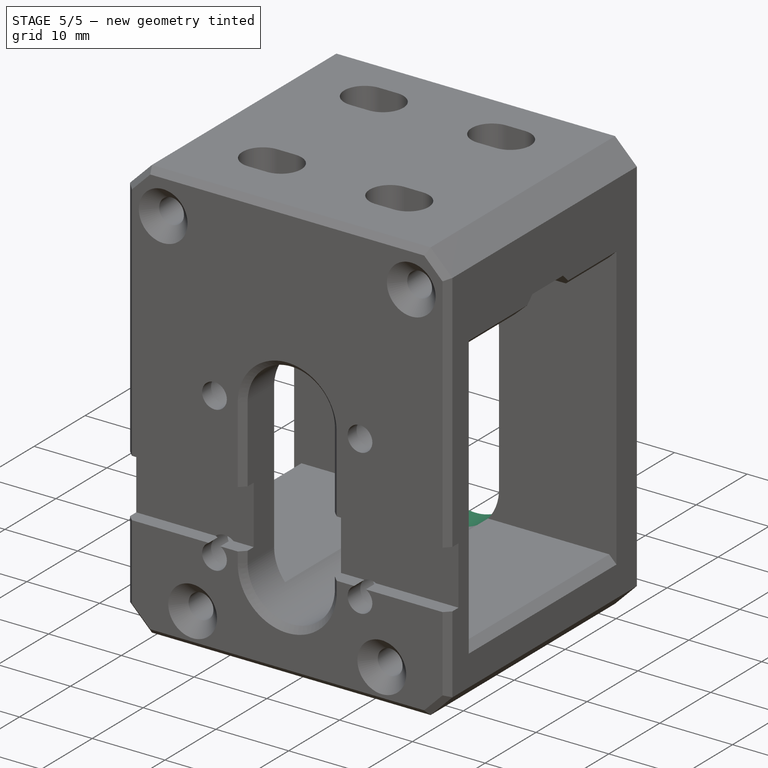
[diagram: stage 5 of 5 — iso view after this stage's code; geometry added in this stage tinted green]
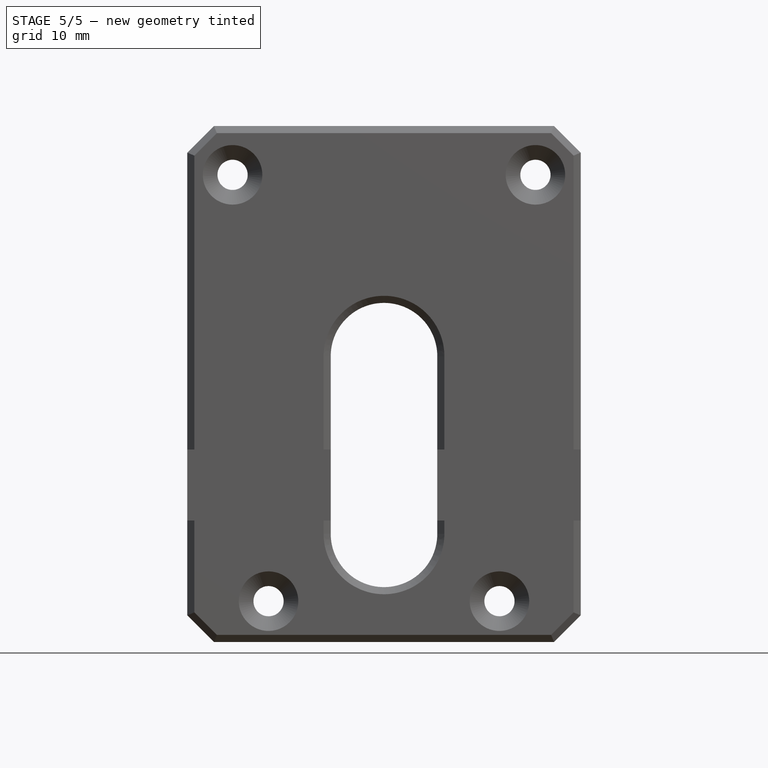
[diagram: stage 5 of 5 — front view after this stage's code; geometry added in this stage tinted green]
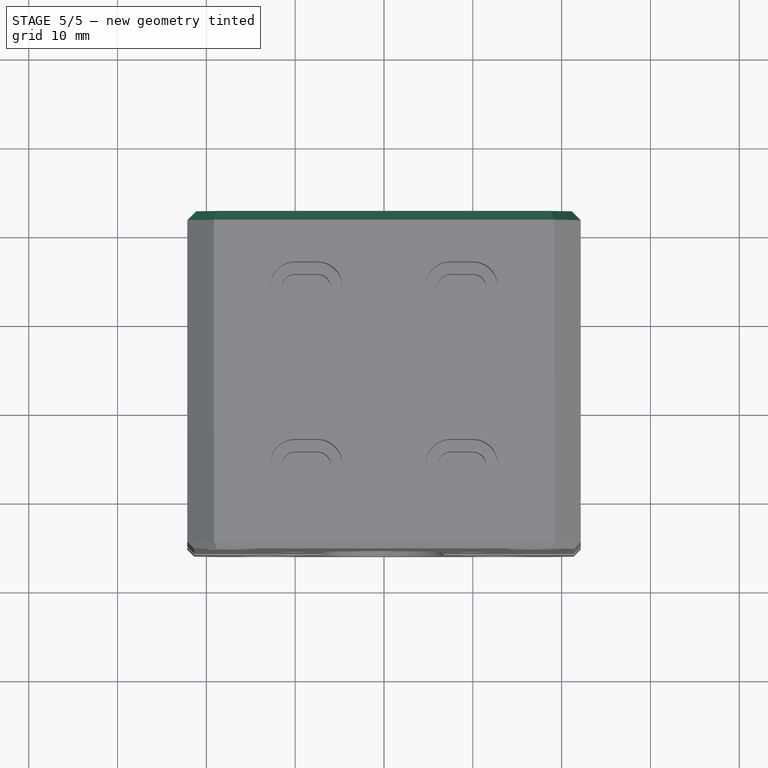
[diagram: stage 5 of 5 — top view after this stage's code; geometry added in this stage tinted green]
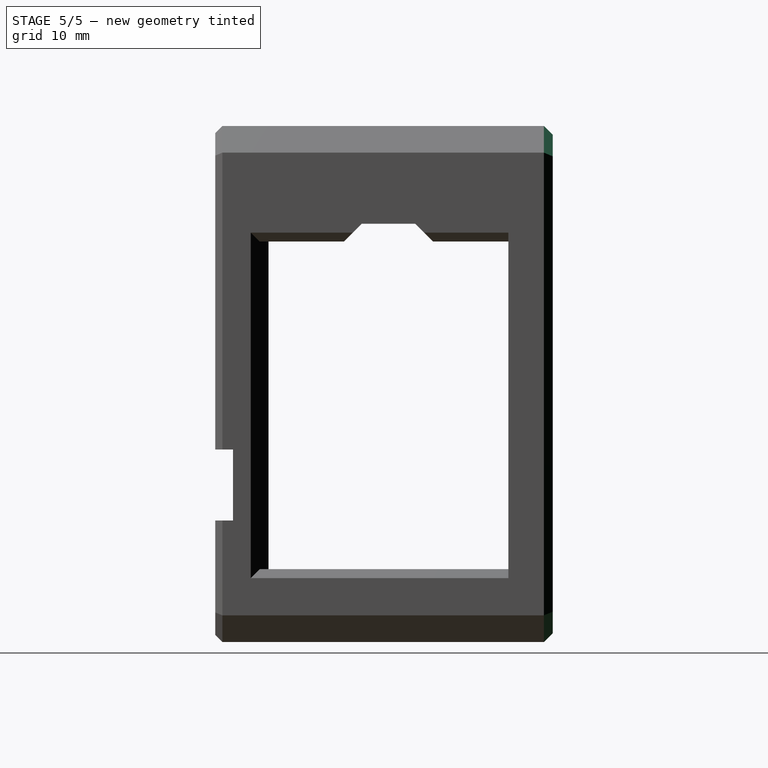
[diagram: stage 5 of 5 — right view after this stage's code; geometry added in this stage tinted green]
FEATURE [PartDesign::SubShapeBinder] Binder004  label="Binder004(EvaHoles)"
  BindCopyOnChange = 0
  BindMode = 0
  ClaimChildren = false
  Context = -> Body001 [Binder004.]
  FillStyle = 0
  Fuse = false
  MakeFace = true
  OffsetFill = false
  OffsetIntersection = false
  OffsetJoinType = 0
  OffsetOpenResult = false
  PartialLoad = false
  Placement = pos=(0,32,0) rot=(0,0,1;0rad)
  Relative = true
  Support = -> [Body[Export.]]
  TreeRank = 61
  _Version = 8
  expr: Placement.Base.y = <<S_TopPlate>>.Constraints.Width + Pad003.Length
FEATURE [PartDesign::SubShapeBinder] Binder005  label="Binder005(CenterRelief001)"
  BindCopyOnChange = 0
  BindMode = 0
  ClaimChildren = false
  Context = -> Body001 [Binder005.]
  FillStyle = 0
  Fuse = false
  MakeFace = true
  OffsetFill = false
  OffsetIntersection = false
  OffsetJoinType = 0
  OffsetOpenResult = false
  PartialLoad = false
  Relative = true
  Support = -> [Body[Export002.]]
  TreeRank = 62
  _Version = 8
FEATURE [PartDesign::Pocket] Pocket003
  BaseFeature = -> Chamfer005
  ClaimChildren = false
  Fit = 0
  FitJoin = 0
  InnerFit = 0
  InnerFitJoin = 0
  InnerTaperAngle = 0
  InnerTaperAngleRev = 0
  Length = 5
  Length2 = 100
  Linearize = true
  NewSolid = false
  Placement = pos=(0,27,-6e-15) rot=(0,0.707107,0.707107;3.14159rad)
  Profile = -> Binder005
  Reversed = true
  Suppress = false
  TreeRank = 63
  Type = 1
  _ProfileBasedVersion = 1
FEATURE [PartDesign::Chamfer] Chamfer006
  Angle = 45
  Base = -> Pocket003 [Edge20,Edge17,Edge4,Edge19,Edge21,Edge23,Edge24,Edge22,Edge25]
  BaseFeature = -> Pocket003
  ChamferType = 0
  FlipDirection = false
  NewSolid = false
  Placement = pos=(0,27,-6e-15) rot=(0,0.707107,0.707107;3.14159rad)
  Size = 1
  Size2 = 1
  SupportTransform = false
  Suppress = false
  TreeRank = 64
FEATURE [PartDesign::Hole] Hole002
  BaseFeature = -> Chamfer006
  ClaimChildren = false
  CustomThreadClearance = 0
  Depth = 25
  DepthType = 0
  Diameter = 3.4
  DrillForDepth = false
  DrillPoint = 1
  DrillPointAngle = 118
  Fit = 0
  FitJoin = 0
  HoleCutCountersinkAngle = 90
  HoleCutCustomValues = false
  HoleCutDepth = 3.4
  HoleCutDiameter = 4.9
  HoleCutType = 1
  InnerFit = 0
  InnerFitJoin = 0
  ModelThread = false
  NewSolid = false
  Placement = pos=(0,27,-6e-15) rot=(0,0.707107,0.707107;3.14159rad)
  Profile = -> Binder004
  Suppress = false
  Tapered = false
  TaperedAngle = 90
  ThreadClass = 0
  ThreadDepth = 25
  ThreadDepthType = 0
  ThreadDirection = 0
  ThreadFit = 0
  ThreadSize = 9
  ThreadType = 1
  Threaded = false
  TreeRank = 65
  UseCustomThreadClearance = false
  _ProfileBasedVersion = 1
FEATURE [PartDesign::Chamfer] Chamfer007
  Angle = 45
  Base = -> Hole002 [Edge68,Edge64,Edge54,Edge66]
  BaseFeature = -> Hole002
  ChamferType = 0
  FlipDirection = false
  NewSolid = false
  Placement = pos=(0,27,-6e-15) rot=(0,0.707107,0.707107;3.14159rad)
  Size = 0.7
  Size2 = 1
  SupportTransform = false
  Suppress = false
  TreeRank = 66
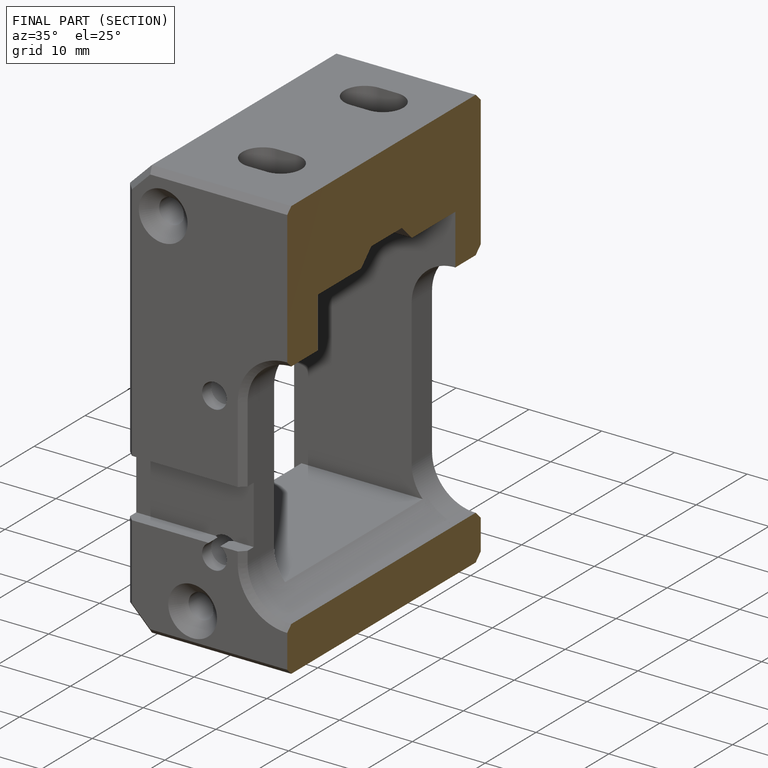
[diagram: finished part — half-section view (interior)]
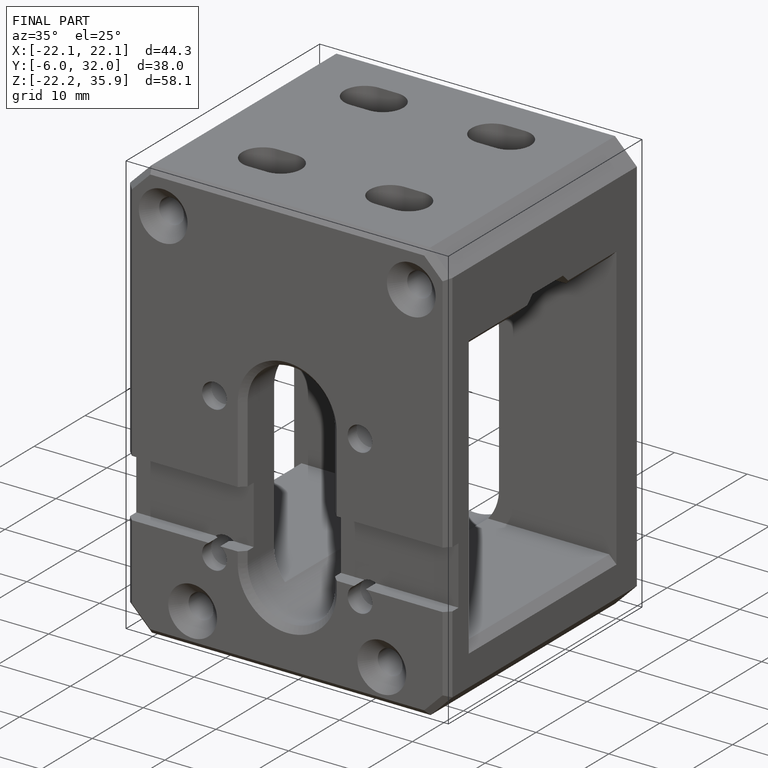
[diagram: finished part — iso view with bounding-box wireframe]
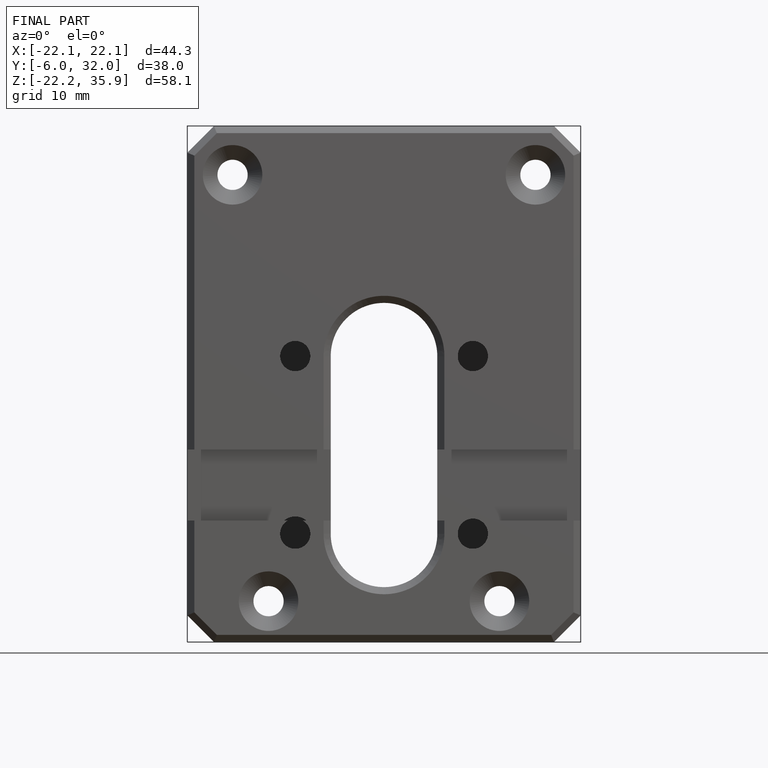
[diagram: finished part — front view with bounding-box wireframe]
